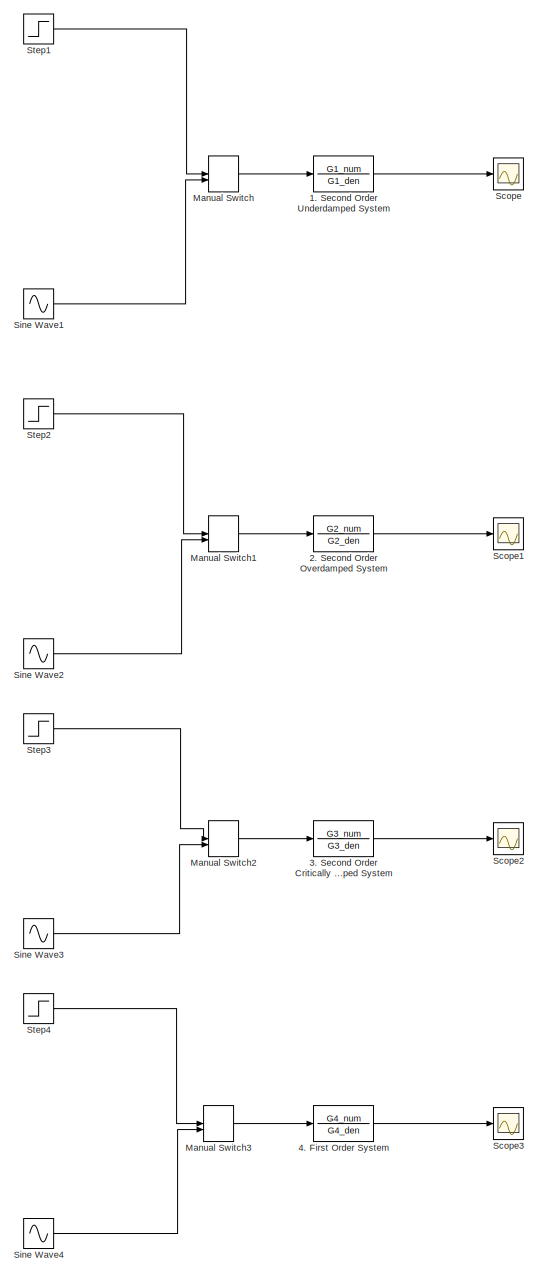
[diagram: root canvas - part 1/2, full width, top band]
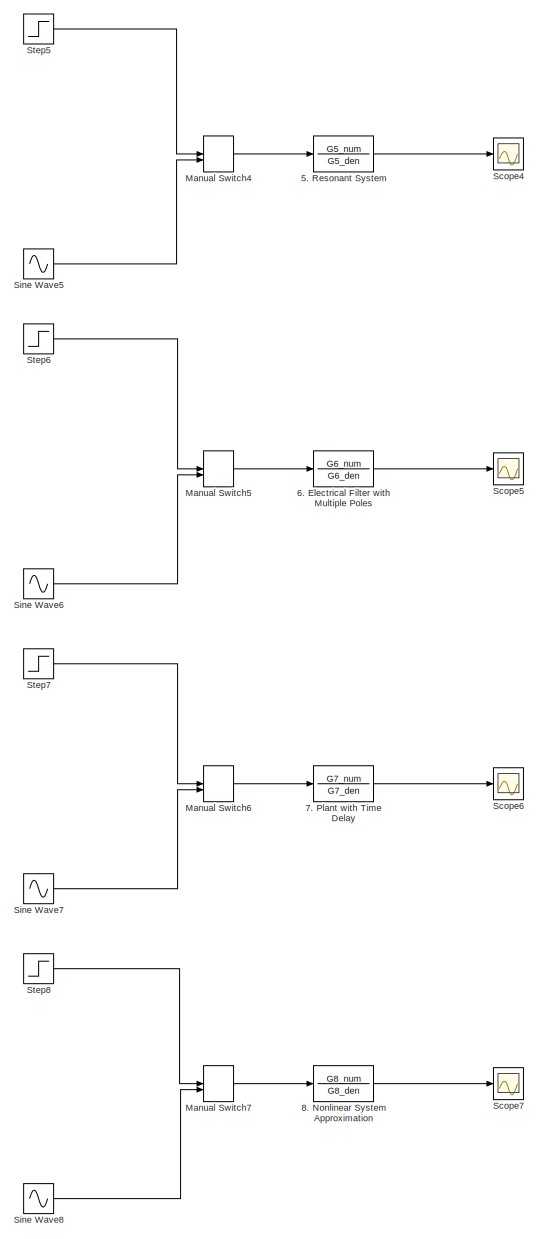
[diagram: root canvas - part 2/2, full width, bottom band]
MODEL slx_10468ba3f272
KIND model
CONFIG AbsTol = auto
CONFIG EnableMultiTasking = off
CONFIG FixedStep = auto
CONFIG MaxStep = auto
CONFIG MinStep = auto
CONFIG RelTol = 1e-3
CONFIG SampleTimeConstraint = Unconstrained
CONFIG SolverName = VariableStepAuto
CONFIG StartTime = 0.0
CONFIG StopTime = 10.0
BLOCK [TransferFcn] 1. Second Order Underdamped System
  Denominator = G1_den
  Numerator = G1_num
BLOCK [TransferFcn] 2. Second Order Overdamped System
  Denominator = G2_den
  Numerator = G2_num
BLOCK [TransferFcn] 3. Second Order Critically Damped System
  Denominator = G3_den
  Numerator = G3_num
BLOCK [TransferFcn] 4. First Order System
  Denominator = G4_den
  Numerator = G4_num
BLOCK [TransferFcn] 5. Resonant System
  Denominator = G5_den
  Numerator = G5_num
BLOCK [TransferFcn] 6. Electrical Filter with Multiple Poles
  Denominator = G6_den
  Numerator = G6_num
BLOCK [TransferFcn] 7. Plant with Time Delay
  Denominator = G7_den
  Numerator = G7_num
BLOCK [TransferFcn] 8. Nonlinear System Approximation
  Denominator = G8_den
  Numerator = G8_num
BLOCK [ManualSwitch] Manual Switch
BLOCK [ManualSwitch] Manual Switch1
BLOCK [ManualSwitch] Manual Switch2
BLOCK [ManualSwitch] Manual Switch3
BLOCK [ManualSwitch] Manual Switch4
BLOCK [ManualSwitch] Manual Switch5
BLOCK [ManualSwitch] Manual Switch6
BLOCK [ManualSwitch] Manual Switch7
BLOCK [Scope] Scope
  Floating = off
  NumInputPorts = 1
  ScopeSpecificationString = Simulink.scopes.TimeScopeBlockCfg('CurrentConfiguration', extmgr.ConfigurationSet(extmgr.Configuration('Core','General UI',true),extmgr.Configuration('Core','Source UI',true),extmgr.Configuration('Sources','WiredSimulink',true,'DataLoggingVariableName','ScopeData1'),extmgr.Configuration('Visuals','Time Domain',true,'SerializedDisplays',{struct('MinYLimReal','-0.12485','MaxYLimReal','1.12361','YLab...<+1393ch>
BLOCK [Scope] Scope1
  Floating = off
  NumInputPorts = 1
  ScopeSpecificationString = Simulink.scopes.TimeScopeBlockCfg('CurrentConfiguration', extmgr.ConfigurationSet(extmgr.Configuration('Core','General UI',true),extmgr.Configuration('Core','Source UI',true),extmgr.Configuration('Sources','WiredSimulink',true,'DataLoggingVariableName','ScopeData2'),extmgr.Configuration('Visuals','Time Domain',true,'SerializedDisplays',{struct('MinYLimReal','-0.02083','MaxYLimReal','0.1875','YLabe...<+1388ch>
BLOCK [Scope] Scope2
  Floating = off
  NumInputPorts = 1
  ScopeSpecificationString = Simulink.scopes.TimeScopeBlockCfg('CurrentConfiguration', extmgr.ConfigurationSet(extmgr.Configuration('Core','General UI',true),extmgr.Configuration('Core','Source UI',true),extmgr.Configuration('Sources','WiredSimulink',true,'DataLoggingVariableName','ScopeData3'),extmgr.Configuration('Visuals','Time Domain',true,'SerializedDisplays',{struct('MinYLimReal','-0.12485','MaxYLimReal','1.12361','YLab...<+1399ch>
BLOCK [Scope] Scope3
  Floating = off
  NumInputPorts = 1
  ScopeSpecificationString = Simulink.scopes.TimeScopeBlockCfg('CurrentConfiguration', extmgr.ConfigurationSet(extmgr.Configuration('Core','General UI',true),extmgr.Configuration('Core','Source UI',true),extmgr.Configuration('Sources','WiredSimulink',true,'DataLoggingVariableName','ScopeData4'),extmgr.Configuration('Visuals','Time Domain',true,'SerializedDisplays',{struct('MinYLimReal','-0.12498','MaxYLimReal','1.12486','YLab...<+1380ch>
BLOCK [Scope] Scope4
  Floating = off
  NumInputPorts = 1
  ScopeSpecificationString = Simulink.scopes.TimeScopeBlockCfg('CurrentConfiguration', extmgr.ConfigurationSet(extmgr.Configuration('Core','General UI',true),extmgr.Configuration('Core','Source UI',true),extmgr.Configuration('Sources','WiredSimulink',true,'DataLoggingVariableName','ScopeData5'),extmgr.Configuration('Visuals','Time Domain',true,'SerializedDisplays',{struct('MinYLimReal','-1038.55198','MaxYLimReal','255.65123',...<+1397ch>
BLOCK [Scope] Scope5
  Floating = off
  NumInputPorts = 1
  ScopeSpecificationString = Simulink.scopes.TimeScopeBlockCfg('CurrentConfiguration', extmgr.ConfigurationSet(extmgr.Configuration('Core','General UI',true),extmgr.Configuration('Core','Source UI',true),extmgr.Configuration('Sources','WiredSimulink',true,'DataLoggingVariableName','ScopeData6'),extmgr.Configuration('Visuals','Time Domain',true,'SerializedDisplays',{struct('MinYLimReal','-0.86146','MaxYLimReal','2.15669','YLab...<+1399ch>
BLOCK [Scope] Scope6
  Floating = off
  NumInputPorts = 1
  ScopeSpecificationString = Simulink.scopes.TimeScopeBlockCfg('CurrentConfiguration', extmgr.ConfigurationSet(extmgr.Configuration('Core','General UI',true),extmgr.Configuration('Core','Source UI',true),extmgr.Configuration('Sources','WiredSimulink',true,'DataLoggingVariableName','ScopeData7'),extmgr.Configuration('Visuals','Time Domain',true,'SerializedDisplays',{struct('MinYLimReal','-21.76069','MaxYLimReal','26.4003','YLa...<+1385ch>
BLOCK [Scope] Scope7
  Floating = off
  NumInputPorts = 1
  ScopeSpecificationString = Simulink.scopes.TimeScopeBlockCfg('CurrentConfiguration', extmgr.ConfigurationSet(extmgr.Configuration('Core','General UI',true),extmgr.Configuration('Core','Source UI',true),extmgr.Configuration('Sources','WiredSimulink',true),extmgr.Configuration('Visuals','Time Domain',true,'SerializedDisplays',{struct('MinYLimReal','-9.21721','MaxYLimReal','15.33805','YLabelReal','','MinYLimMag','0.00000','Max...<+1357ch>
BLOCK [Sin] Sine Wave1
  SampleTime = 0
BLOCK [Sin] Sine Wave2
  SampleTime = 0
BLOCK [Sin] Sine Wave3
  SampleTime = 0
BLOCK [Sin] Sine Wave4
  SampleTime = 0
BLOCK [Sin] Sine Wave5
  SampleTime = 0
BLOCK [Sin] Sine Wave6
  SampleTime = 0
BLOCK [Sin] Sine Wave7
  SampleTime = 0
BLOCK [Sin] Sine Wave8
  SampleTime = 0
BLOCK [Step] Step1
  SampleTime = 0
BLOCK [Step] Step2
  SampleTime = 0
BLOCK [Step] Step3
  SampleTime = 0
BLOCK [Step] Step4
  SampleTime = 0
BLOCK [Step] Step5
  SampleTime = 0
BLOCK [Step] Step6
  SampleTime = 0
BLOCK [Step] Step7
  SampleTime = 0
BLOCK [Step] Step8
  SampleTime = 0
LINE 1. Second Order Underdamped System:1 -> Scope:1
LINE 2. Second Order Overdamped System:1 -> Scope1:1
LINE 3. Second Order Critically Damped System:1 -> Scope2:1
LINE 4. First Order System:1 -> Scope3:1
LINE 5. Resonant System:1 -> Scope4:1
LINE 6. Electrical Filter with Multiple Poles:1 -> Scope5:1
LINE 7. Plant with Time Delay:1 -> Scope6:1
LINE 8. Nonlinear System Approximation:1 -> Scope7:1
LINE Manual Switch1:1 -> 2. Second Order Overdamped System:1
LINE Manual Switch2:1 -> 3. Second Order Critically Damped System:1
LINE Manual Switch3:1 -> 4. First Order System:1
LINE Manual Switch4:1 -> 5. Resonant System:1
LINE Manual Switch5:1 -> 6. Electrical Filter with Multiple Poles:1
LINE Manual Switch6:1 -> 7. Plant with Time Delay:1
LINE Manual Switch7:1 -> 8. Nonlinear System Approximation:1
LINE Manual Switch:1 -> 1. Second Order Underdamped System:1
LINE Sine Wave1:1 -> Manual Switch:2
LINE Sine Wave2:1 -> Manual Switch1:2
LINE Sine Wave3:1 -> Manual Switch2:2
LINE Sine Wave4:1 -> Manual Switch3:2
LINE Sine Wave5:1 -> Manual Switch4:2
LINE Sine Wave6:1 -> Manual Switch5:2
LINE Sine Wave7:1 -> Manual Switch6:2
LINE Sine Wave8:1 -> Manual Switch7:2
LINE Step1:1 -> Manual Switch:1
LINE Step2:1 -> Manual Switch1:1
LINE Step3:1 -> Manual Switch2:1
LINE Step4:1 -> Manual Switch3:1
LINE Step5:1 -> Manual Switch4:1
LINE Step6:1 -> Manual Switch5:1
LINE Step7:1 -> Manual Switch6:1
LINE Step8:1 -> Manual Switch7:1
